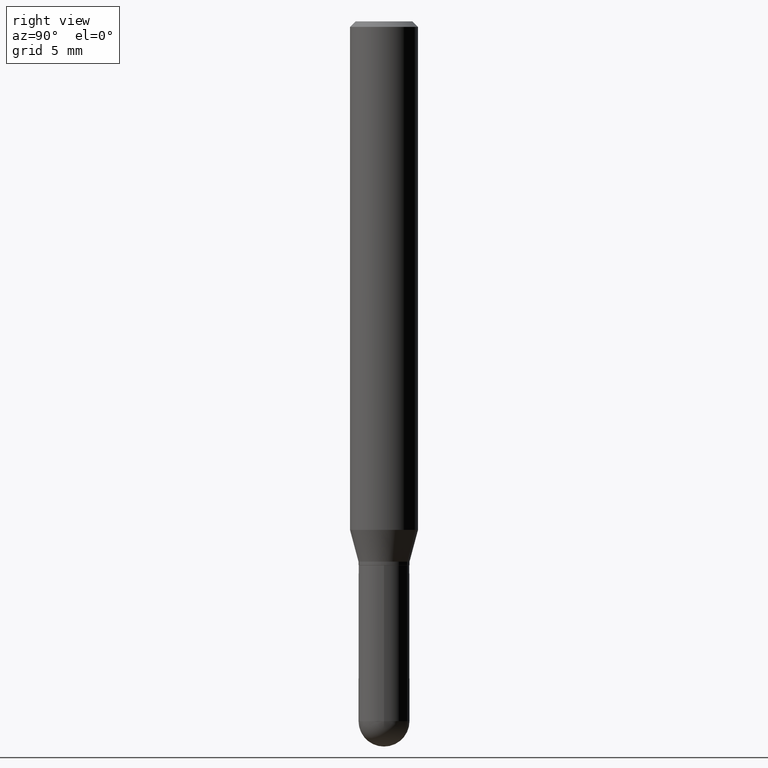
[diagram: clean part render]
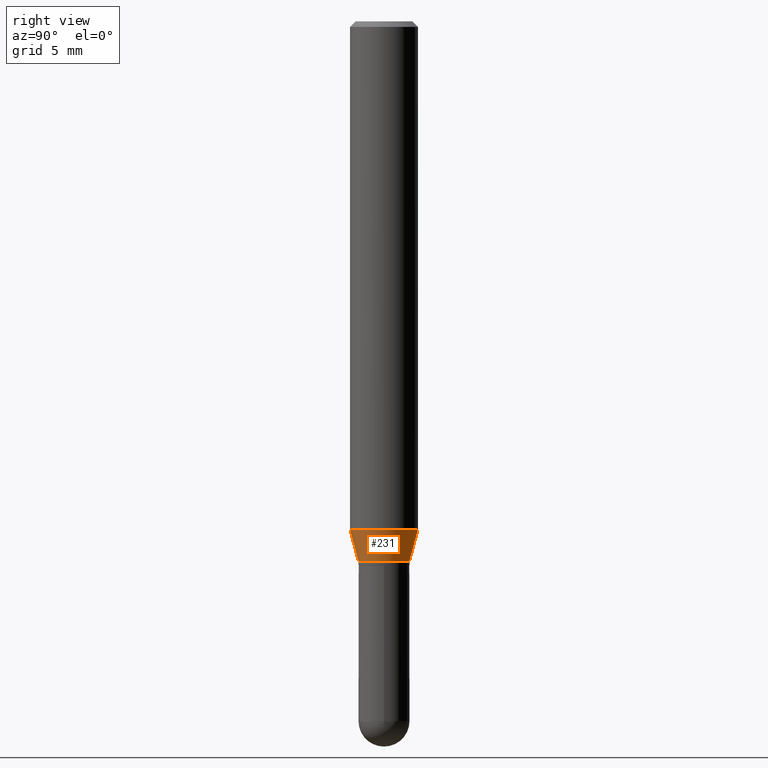
[diagram: same view with one face highlighted and labeled with its STEP entity id]
A machine part, right view. The second image highlights one B-rep face of the part: STEP entity #231.
In plain terms, the highlighted conical surface has half-angle 15 deg.
Its self-contained STEP definition (entity closure, byte-faithful):
#7 = VECTOR ( 'NONE', #241, 39.37007874015748854 ) ;
#8 = DIRECTION ( 'NONE',  ( -6.982962677686265922E-15, -1.000000000000000000, 2.913971193241880372E-15 ) ) ;
#30 = CARTESIAN_POINT ( 'NONE',  ( 6.661338147751283383E-16, 0.09374999999999512890, -1.402483408562509304 ) ) ;
#33 = VECTOR ( 'NONE', #164, 39.37007874015748143 ) ;
#51 = AXIS2_PLACEMENT_3D ( 'NONE', #169, #332, #8 ) ;
#66 = VERTEX_POINT ( 'NONE', #337 ) ;
#76 = CARTESIAN_POINT ( 'NONE',  ( 4.995115432393847559E-16, 0.07029999999999450577, -1.489999999999999991 ) ) ;
#80 = CARTESIAN_POINT ( 'NONE',  ( -4.909022762413059973E-16, -0.07030000000000491411, -1.489999999999999325 ) ) ;
#82 = CIRCLE ( 'NONE', #496, 0.07029999999999970994 ) ;
#88 = CONICAL_SURFACE ( 'NONE', #130, 0.07029999999999970994, 0.2617993877991510732 ) ;
#100 = EDGE_CURVE ( 'NONE', #66, #210, #287, .T. ) ;
#115 = EDGE_CURVE ( 'NONE', #66, #187, #82, .T. ) ;
#122 = EDGE_LOOP ( 'NONE', ( #295, #475, #266, #271 ) ) ;
#126 = FACE_OUTER_BOUND ( 'NONE', #122, .T. ) ;
#130 = AXIS2_PLACEMENT_3D ( 'NONE', #489, #369, #372 ) ;
#133 = EDGE_CURVE ( 'NONE', #210, #286, #384, .T. ) ;
#164 = DIRECTION ( 'NONE',  ( 1.839019923739605837E-15, 0.2588190451025257355, 0.9659258262890669799 ) ) ;
#169 = CARTESIAN_POINT ( 'NONE',  ( 3.429103578000664545E-29, -4.897640900180445107E-15, -1.402483408562508860 ) ) ;
#187 = VERTEX_POINT ( 'NONE', #476 ) ;
#202 = DIRECTION ( 'NONE',  ( -6.982962677686265922E-15, -1.000000000000000000, 3.885985766236521163E-15 ) ) ;
#210 = VERTEX_POINT ( 'NONE', #485 ) ;
#231 = ADVANCED_FACE ( 'NONE', ( #126 ), #88, .T. ) ;
#241 = DIRECTION ( 'NONE',  ( -1.807323732225335661E-15, -0.2588190451025189631, 0.9659258262890687563 ) ) ;
#262 = EDGE_CURVE ( 'NONE', #187, #286, #274, .T. ) ;
#266 = ORIENTED_EDGE ( 'NONE', *, *, #133, .F. ) ;
#271 = ORIENTED_EDGE ( 'NONE', *, *, #100, .F. ) ;
#274 = LINE ( 'NONE', #76, #33 ) ;
#286 = VERTEX_POINT ( 'NONE', #30 ) ;
#287 = LINE ( 'NONE', #80, #7 ) ;
#295 = ORIENTED_EDGE ( 'NONE', *, *, #115, .T. ) ;
#332 = DIRECTION ( 'NONE',  ( -2.445022562880343100E-29, 3.492120384654201603E-15, 1.000000000000000000 ) ) ;
#337 = CARTESIAN_POINT ( 'NONE',  ( -4.909022762413059973E-16, -0.07030000000000491411, -1.489999999999999325 ) ) ;
#353 = CARTESIAN_POINT ( 'NONE',  ( 3.643083618691710256E-29, -5.203259373134758290E-15, -1.489999999999999769 ) ) ;
#369 = DIRECTION ( 'NONE',  ( -2.445022562880343100E-29, 3.492120384654201603E-15, 1.000000000000000000 ) ) ;
#372 = DIRECTION ( 'NONE',  ( -6.982962677686265922E-15, -1.000000000000000000, 3.885985766236521163E-15 ) ) ;
#384 = CIRCLE ( 'NONE', #51, 0.09375000000000001388 ) ;
#475 = ORIENTED_EDGE ( 'NONE', *, *, #262, .T. ) ;
#476 = CARTESIAN_POINT ( 'NONE',  ( 5.828226790072563992E-16, 0.07029999999999450577, -1.489999999999999991 ) ) ;
#484 = DIRECTION ( 'NONE',  ( -2.445022562880343100E-29, 3.492120384654201603E-15, 1.000000000000000000 ) ) ;
#485 = CARTESIAN_POINT ( 'NONE',  ( -6.546527510330530901E-16, -0.09375000000000488498, -1.402483408562508638 ) ) ;
#489 = CARTESIAN_POINT ( 'NONE',  ( 3.643083618691710256E-29, -5.203259373134758290E-15, -1.489999999999999769 ) ) ;
#496 = AXIS2_PLACEMENT_3D ( 'NONE', #353, #484, #202 ) ;